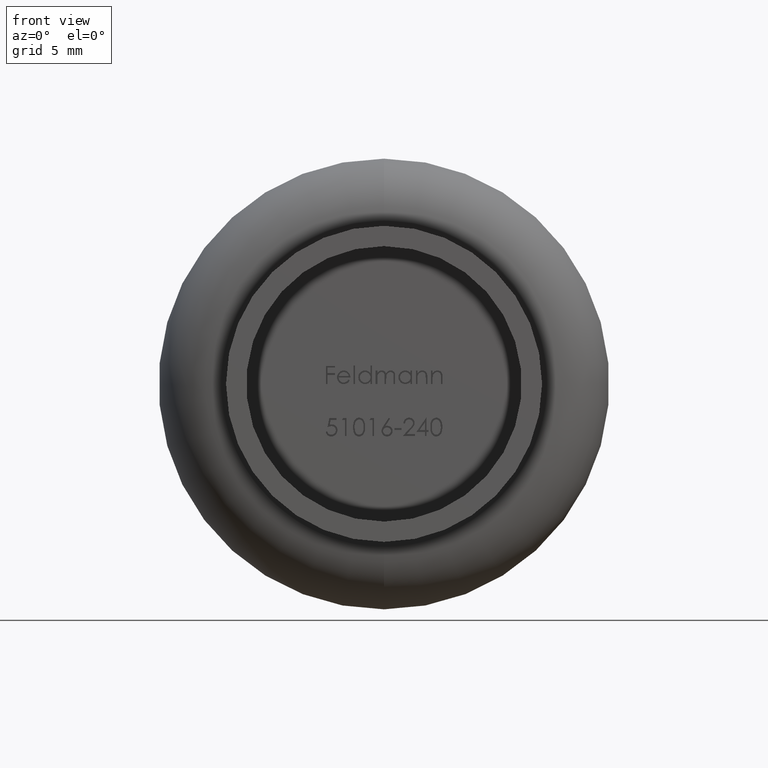
[diagram: clean part render]
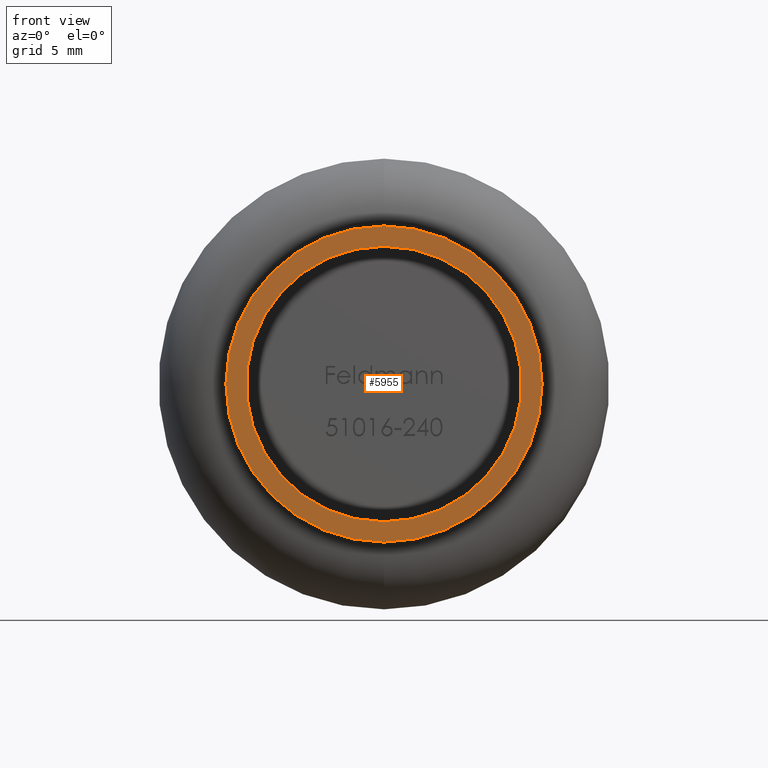
[diagram: same view with one face highlighted and labeled with its STEP entity id]
A machine part, front view. The second image highlights one B-rep face of the part: STEP entity #5955.
In plain terms, the highlighted planar face has unit normal (0, -1, -0).
Its self-contained STEP definition (entity closure, byte-faithful):
#325 = VERTEX_POINT ( 'NONE', #1699 ) ;
#787 = EDGE_LOOP ( 'NONE', ( #8120, #8093 ) ) ;
#974 = DIRECTION ( 'NONE',  ( 0.0000000000000000000, 0.0000000000000000000, -1.000000000000000000 ) ) ;
#989 = DIRECTION ( 'NONE',  ( 0.0000000000000000000, -1.000000000000000000, 0.0000000000000000000 ) ) ;
#1008 = CARTESIAN_POINT ( 'NONE',  ( 0.0000000000000000000, 0.0000000000000000000, 0.0000000000000000000 ) ) ;
#1277 = DIRECTION ( 'NONE',  ( -0.0000000000000000000, -1.000000000000000000, -0.0000000000000000000 ) ) ;
#1502 = VERTEX_POINT ( 'NONE', #3719 ) ;
#1511 = DIRECTION ( 'NONE',  ( 0.0000000000000000000, 0.0000000000000000000, -1.000000000000000000 ) ) ;
#1531 = EDGE_CURVE ( 'NONE', #1502, #11846, #9043, .T. ) ;
#1699 = CARTESIAN_POINT ( 'NONE',  ( 7.470345474798854300E-016, 0.0000000000000000000, 6.099999999999999600 ) ) ;
#1740 = AXIS2_PLACEMENT_3D ( 'NONE', #3106, #1277, #5950 ) ;
#2082 = DIRECTION ( 'NONE',  ( -0.0000000000000000000, -1.000000000000000000, -0.0000000000000000000 ) ) ;
#2404 = EDGE_CURVE ( 'NONE', #11846, #1502, #8792, .T. ) ;
#2612 = AXIS2_PLACEMENT_3D ( 'NONE', #7727, #7713, #7692 ) ;
#3106 = CARTESIAN_POINT ( 'NONE',  ( 0.0000000000000000000, 0.0000000000000000000, 0.0000000000000000000 ) ) ;
#3175 = AXIS2_PLACEMENT_3D ( 'NONE', #11679, #2082, #1511 ) ;
#3719 = CARTESIAN_POINT ( 'NONE',  ( 8.572527594031473200E-016, 0.0000000000000000000, 7.000000000000000000 ) ) ;
#4378 = VERTEX_POINT ( 'NONE', #7888 ) ;
#5950 = DIRECTION ( 'NONE',  ( 0.0000000000000000000, 0.0000000000000000000, -1.000000000000000000 ) ) ;
#5955 = ADVANCED_FACE ( 'NONE', ( #6258, #8454 ), #9881, .T. ) ;
#6000 = AXIS2_PLACEMENT_3D ( 'NONE', #1008, #989, #974 ) ;
#6054 = AXIS2_PLACEMENT_3D ( 'NONE', #9807, #9794, #9785 ) ;
#6080 = ORIENTED_EDGE ( 'NONE', *, *, #8670, .F. ) ;
#6258 = FACE_BOUND ( 'NONE', #7183, .T. ) ;
#6899 = ORIENTED_EDGE ( 'NONE', *, *, #7018, .F. ) ;
#7018 = EDGE_CURVE ( 'NONE', #325, #4378, #8058, .T. ) ;
#7183 = EDGE_LOOP ( 'NONE', ( #6080, #6899 ) ) ;
#7692 = DIRECTION ( 'NONE',  ( 0.0000000000000000000, 0.0000000000000000000, -1.000000000000000000 ) ) ;
#7713 = DIRECTION ( 'NONE',  ( 0.0000000000000000000, -1.000000000000000000, 0.0000000000000000000 ) ) ;
#7727 = CARTESIAN_POINT ( 'NONE',  ( 0.0000000000000000000, 0.0000000000000000000, 0.0000000000000000000 ) ) ;
#7886 = CARTESIAN_POINT ( 'NONE',  ( 0.0000000000000000000, 0.0000000000000000000, -7.000000000000000000 ) ) ;
#7888 = CARTESIAN_POINT ( 'NONE',  ( 0.0000000000000000000, 0.0000000000000000000, -6.099999999999999600 ) ) ;
#8058 = CIRCLE ( 'NONE', #2612, 6.099999999999999600 ) ;
#8093 = ORIENTED_EDGE ( 'NONE', *, *, #1531, .T. ) ;
#8120 = ORIENTED_EDGE ( 'NONE', *, *, #2404, .T. ) ;
#8454 = FACE_OUTER_BOUND ( 'NONE', #787, .T. ) ;
#8670 = EDGE_CURVE ( 'NONE', #4378, #325, #11619, .T. ) ;
#8792 = CIRCLE ( 'NONE', #1740, 7.000000000000000000 ) ;
#9043 = CIRCLE ( 'NONE', #3175, 7.000000000000000000 ) ;
#9785 = DIRECTION ( 'NONE',  ( 0.0000000000000000000, 0.0000000000000000000, -1.000000000000000000 ) ) ;
#9794 = DIRECTION ( 'NONE',  ( 0.0000000000000000000, -1.000000000000000000, -0.0000000000000000000 ) ) ;
#9807 = CARTESIAN_POINT ( 'NONE',  ( 0.0000000000000000000, 0.0000000000000000000, 0.0000000000000000000 ) ) ;
#9881 = PLANE ( 'NONE',  #6054 ) ;
#11619 = CIRCLE ( 'NONE', #6000, 6.099999999999999600 ) ;
#11679 = CARTESIAN_POINT ( 'NONE',  ( 0.0000000000000000000, 0.0000000000000000000, 0.0000000000000000000 ) ) ;
#11846 = VERTEX_POINT ( 'NONE', #7886 ) ;